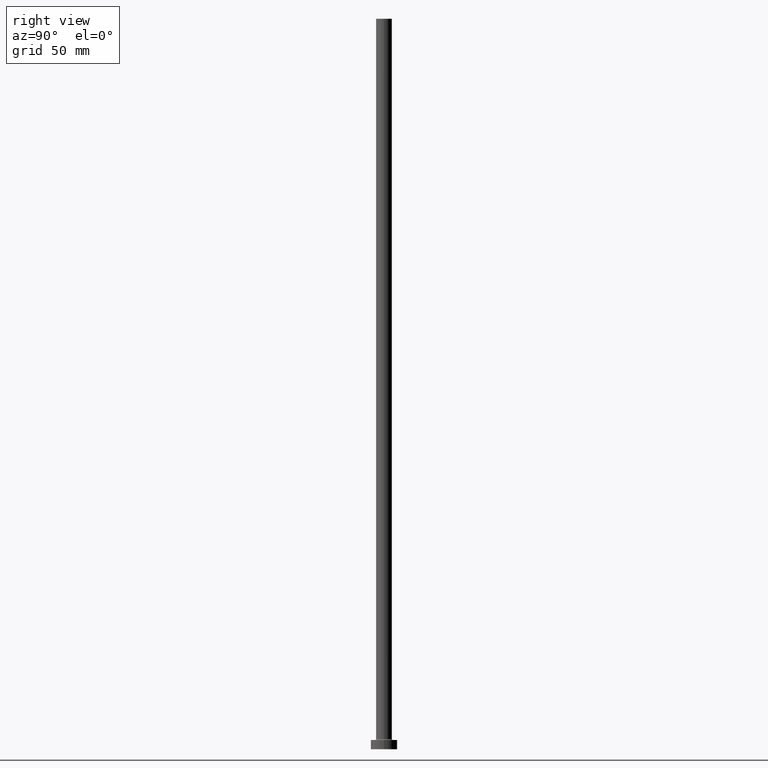
[diagram: clean part render]
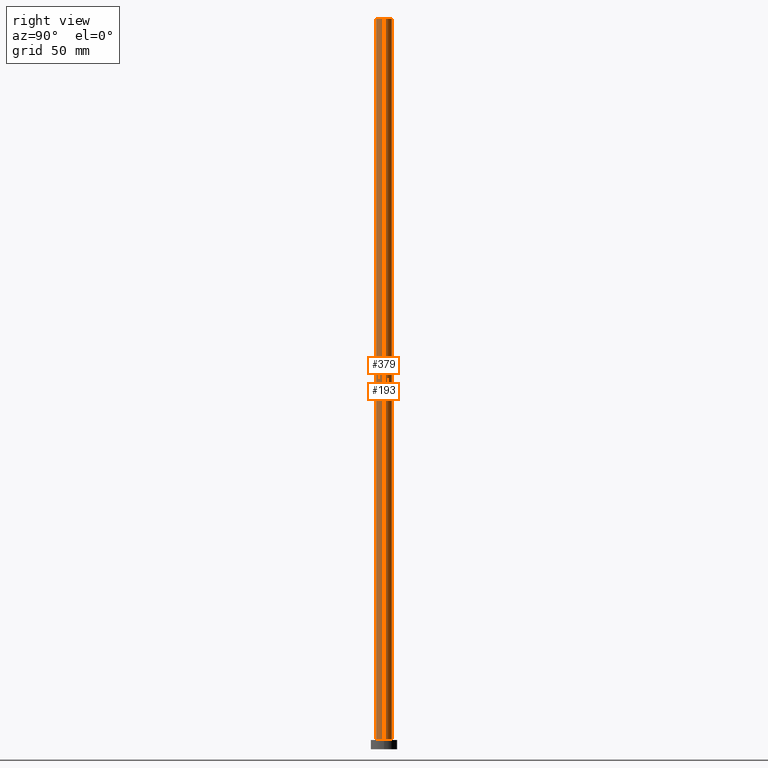
[diagram: same view with one multi-face feature highlighted, each face labeled with its STEP entity id]
A machine part, right view. The highlighted faces form ONE feature: a constant-radius fillet chain: 2 tangent blend faces with common blend radius 6 mm. The faces share edges in the B-rep.
Their STEP definitions:
[1] entity #193 (Cylinder):
#10 = CARTESIAN_POINT ( 'NONE',  ( -6.000000000000000888, 0.000000000000000000, 7.700000000000040146 ) ) ;
#29 = LINE ( 'NONE', #107, #362 ) ;
#31 = ORIENTED_EDGE ( 'NONE', *, *, #399, .F. ) ;
#38 = CARTESIAN_POINT ( 'NONE',  ( -6.000000000000000888, 0.000000000000000000, 550.0000000000000000 ) ) ;
#83 = CARTESIAN_POINT ( 'NONE',  ( 0.000000000000000000, 0.000000000000000000, 7.700000000000040146 ) ) ;
#87 = CARTESIAN_POINT ( 'NONE',  ( -6.000000000000000888, 0.000000000000000000, 550.0000000000000000 ) ) ;
#104 = VERTEX_POINT ( 'NONE', #291 ) ;
#107 = CARTESIAN_POINT ( 'NONE',  ( 6.000000000000000888, 7.347880794884120722E-16, 550.0000000000000000 ) ) ;
#125 = CARTESIAN_POINT ( 'NONE',  ( 0.000000000000000000, 0.000000000000000000, 550.0000000000000000 ) ) ;
#130 = CYLINDRICAL_SURFACE ( 'NONE', #261, 6.000000000000000888 ) ;
#136 = VECTOR ( 'NONE', #387, 1000.000000000000000 ) ;
#137 = DIRECTION ( 'NONE',  ( 0.000000000000000000, 0.000000000000000000, 1.000000000000000000 ) ) ;
#152 = EDGE_CURVE ( 'NONE', #407, #373, #187, .T. ) ;
#174 = CIRCLE ( 'NONE', #182, 6.000000000000000888 ) ;
#182 = AXIS2_PLACEMENT_3D ( 'NONE', #287, #137, #358 ) ;
#183 = DIRECTION ( 'NONE',  ( -0.000000000000000000, -0.000000000000000000, -1.000000000000000000 ) ) ;
#187 = CIRCLE ( 'NONE', #267, 6.000000000000000888 ) ;
#190 = ORIENTED_EDGE ( 'NONE', *, *, #152, .T. ) ;
#193 = ADVANCED_FACE ( 'NONE', ( #310 ), #130, .T. ) ;
#202 = EDGE_LOOP ( 'NONE', ( #31, #309, #190, #280 ) ) ;
#258 = LINE ( 'NONE', #38, #136 ) ;
#261 = AXIS2_PLACEMENT_3D ( 'NONE', #125, #381, #343 ) ;
#267 = AXIS2_PLACEMENT_3D ( 'NONE', #83, #371, #454 ) ;
#280 = ORIENTED_EDGE ( 'NONE', *, *, #306, .F. ) ;
#285 = CARTESIAN_POINT ( 'NONE',  ( 6.000000000000000888, 7.347880794884120722E-16, 7.700000000000040146 ) ) ;
#287 = CARTESIAN_POINT ( 'NONE',  ( 0.000000000000000000, 0.000000000000000000, 550.0000000000000000 ) ) ;
#290 = EDGE_CURVE ( 'NONE', #104, #407, #29, .T. ) ;
#291 = CARTESIAN_POINT ( 'NONE',  ( 6.000000000000000888, 7.347880794884120722E-16, 550.0000000000000000 ) ) ;
#306 = EDGE_CURVE ( 'NONE', #431, #373, #258, .T. ) ;
#309 = ORIENTED_EDGE ( 'NONE', *, *, #290, .T. ) ;
#310 = FACE_OUTER_BOUND ( 'NONE', #202, .T. ) ;
#343 = DIRECTION ( 'NONE',  ( -1.000000000000000000, 0.000000000000000000, 0.000000000000000000 ) ) ;
#358 = DIRECTION ( 'NONE',  ( 1.000000000000000000, 0.000000000000000000, 0.000000000000000000 ) ) ;
#362 = VECTOR ( 'NONE', #183, 1000.000000000000000 ) ;
#371 = DIRECTION ( 'NONE',  ( 0.000000000000000000, 0.000000000000000000, 1.000000000000000000 ) ) ;
#373 = VERTEX_POINT ( 'NONE', #10 ) ;
#381 = DIRECTION ( 'NONE',  ( -0.000000000000000000, -0.000000000000000000, -1.000000000000000000 ) ) ;
#387 = DIRECTION ( 'NONE',  ( -0.000000000000000000, -0.000000000000000000, -1.000000000000000000 ) ) ;
#399 = EDGE_CURVE ( 'NONE', #104, #431, #174, .T. ) ;
#407 = VERTEX_POINT ( 'NONE', #285 ) ;
#431 = VERTEX_POINT ( 'NONE', #87 ) ;
#454 = DIRECTION ( 'NONE',  ( 1.000000000000000000, 0.000000000000000000, 0.000000000000000000 ) ) ;
[2] entity #379 (Cylinder):
#6 = DIRECTION ( 'NONE',  ( 1.000000000000000000, 0.000000000000000000, 0.000000000000000000 ) ) ;
#10 = CARTESIAN_POINT ( 'NONE',  ( -6.000000000000000888, 0.000000000000000000, 7.700000000000040146 ) ) ;
#29 = LINE ( 'NONE', #107, #362 ) ;
#32 = DIRECTION ( 'NONE',  ( 0.000000000000000000, 0.000000000000000000, 1.000000000000000000 ) ) ;
#38 = CARTESIAN_POINT ( 'NONE',  ( -6.000000000000000888, 0.000000000000000000, 550.0000000000000000 ) ) ;
#68 = CYLINDRICAL_SURFACE ( 'NONE', #127, 6.000000000000000888 ) ;
#78 = CARTESIAN_POINT ( 'NONE',  ( 0.000000000000000000, 0.000000000000000000, 550.0000000000000000 ) ) ;
#87 = CARTESIAN_POINT ( 'NONE',  ( -6.000000000000000888, 0.000000000000000000, 550.0000000000000000 ) ) ;
#104 = VERTEX_POINT ( 'NONE', #291 ) ;
#107 = CARTESIAN_POINT ( 'NONE',  ( 6.000000000000000888, 7.347880794884120722E-16, 550.0000000000000000 ) ) ;
#127 = AXIS2_PLACEMENT_3D ( 'NONE', #78, #219, #209 ) ;
#136 = VECTOR ( 'NONE', #387, 1000.000000000000000 ) ;
#142 = ORIENTED_EDGE ( 'NONE', *, *, #460, .F. ) ;
#145 = CARTESIAN_POINT ( 'NONE',  ( 0.000000000000000000, 0.000000000000000000, 7.700000000000040146 ) ) ;
#183 = DIRECTION ( 'NONE',  ( -0.000000000000000000, -0.000000000000000000, -1.000000000000000000 ) ) ;
#196 = CARTESIAN_POINT ( 'NONE',  ( 0.000000000000000000, 0.000000000000000000, 550.0000000000000000 ) ) ;
#209 = DIRECTION ( 'NONE',  ( -1.000000000000000000, 0.000000000000000000, 0.000000000000000000 ) ) ;
#219 = DIRECTION ( 'NONE',  ( -0.000000000000000000, -0.000000000000000000, -1.000000000000000000 ) ) ;
#230 = DIRECTION ( 'NONE',  ( 1.000000000000000000, 0.000000000000000000, 0.000000000000000000 ) ) ;
#255 = CIRCLE ( 'NONE', #449, 6.000000000000000888 ) ;
#258 = LINE ( 'NONE', #38, #136 ) ;
#260 = FACE_OUTER_BOUND ( 'NONE', #332, .T. ) ;
#268 = DIRECTION ( 'NONE',  ( 0.000000000000000000, 0.000000000000000000, 1.000000000000000000 ) ) ;
#277 = EDGE_CURVE ( 'NONE', #373, #407, #255, .T. ) ;
#285 = CARTESIAN_POINT ( 'NONE',  ( 6.000000000000000888, 7.347880794884120722E-16, 7.700000000000040146 ) ) ;
#290 = EDGE_CURVE ( 'NONE', #104, #407, #29, .T. ) ;
#291 = CARTESIAN_POINT ( 'NONE',  ( 6.000000000000000888, 7.347880794884120722E-16, 550.0000000000000000 ) ) ;
#299 = ORIENTED_EDGE ( 'NONE', *, *, #277, .T. ) ;
#306 = EDGE_CURVE ( 'NONE', #431, #373, #258, .T. ) ;
#311 = CIRCLE ( 'NONE', #369, 6.000000000000000888 ) ;
#315 = ORIENTED_EDGE ( 'NONE', *, *, #306, .T. ) ;
#332 = EDGE_LOOP ( 'NONE', ( #339, #142, #315, #299 ) ) ;
#339 = ORIENTED_EDGE ( 'NONE', *, *, #290, .F. ) ;
#362 = VECTOR ( 'NONE', #183, 1000.000000000000000 ) ;
#369 = AXIS2_PLACEMENT_3D ( 'NONE', #196, #268, #230 ) ;
#373 = VERTEX_POINT ( 'NONE', #10 ) ;
#379 = ADVANCED_FACE ( 'NONE', ( #260 ), #68, .T. ) ;
#387 = DIRECTION ( 'NONE',  ( -0.000000000000000000, -0.000000000000000000, -1.000000000000000000 ) ) ;
#407 = VERTEX_POINT ( 'NONE', #285 ) ;
#431 = VERTEX_POINT ( 'NONE', #87 ) ;
#449 = AXIS2_PLACEMENT_3D ( 'NONE', #145, #32, #6 ) ;
#460 = EDGE_CURVE ( 'NONE', #431, #104, #311, .T. ) ;